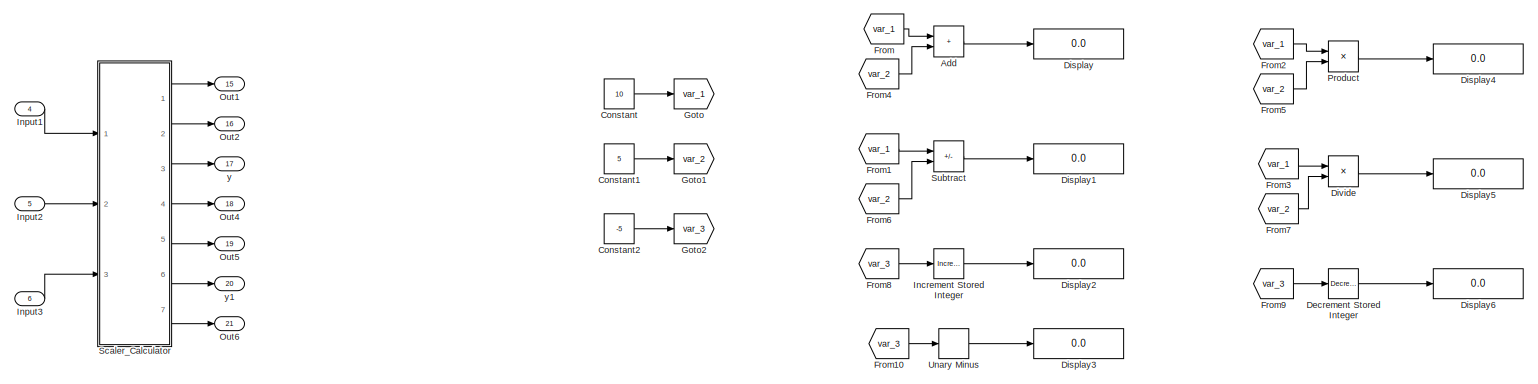
[diagram: root canvas - part 1/3, full width, top band]
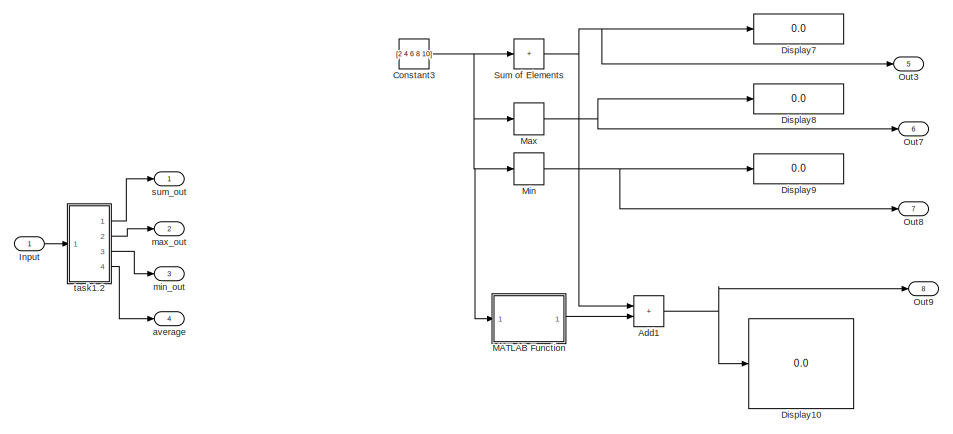
[diagram: root canvas - part 2/3, central region]
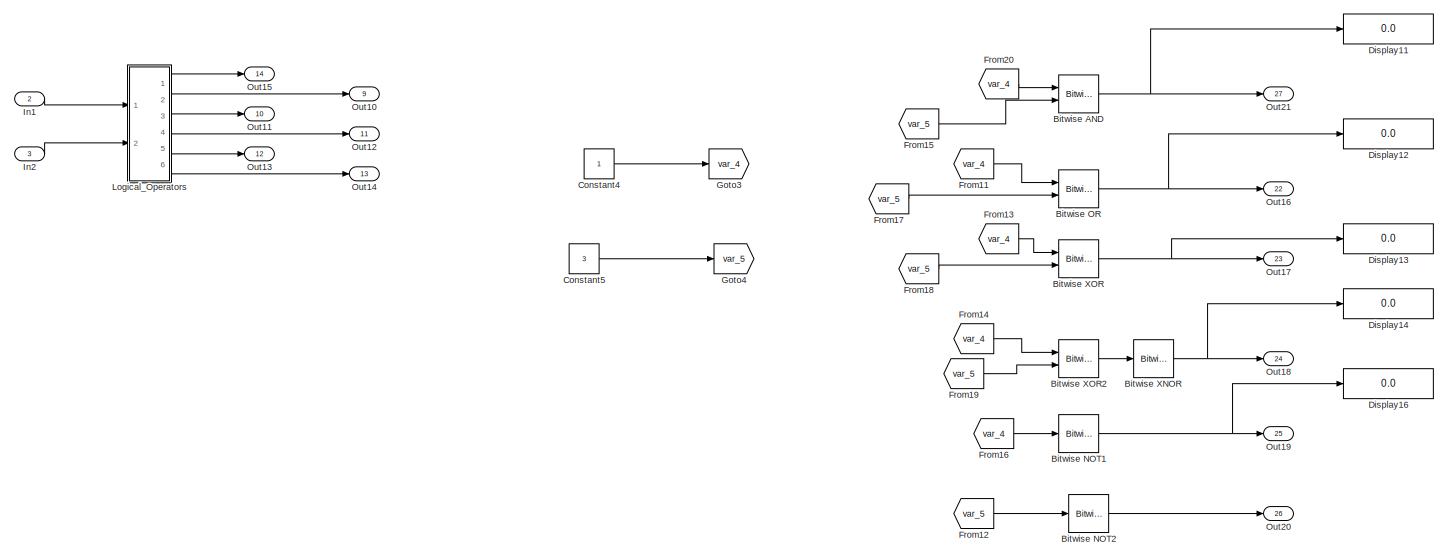
[diagram: root canvas - part 3/3, full width, bottom band]
MODEL slx_2c81993fb657
KIND model
CONFIG AbsTol = auto
CONFIG EnableMultiTasking = off
CONFIG FixedStep = auto
CONFIG MaxStep = auto
CONFIG MinStep = auto
CONFIG RelTol = 1e-3
CONFIG SampleTimeConstraint = Unconstrained
CONFIG SolverName = FixedStepDiscrete
CONFIG StartTime = 0.0
CONFIG StopTime = 10.0
BLOCK [Sum] Add
  IconShape = rectangular
  Ports = [2, 1]
BLOCK [Sum] Add1
  IconShape = rectangular
  Ports = [2, 1]
BLOCK [Reference] Bitwise AND  REF=simulink/Logic and Bit
Operations/Bitwise
Operator
  Ports = [2, 1]
  SourceBlock = simulink/Logic and Bit\nOperations/Bitwise\nOperator
  SourceProductBaseCode = SL
  SourceType = Bitwise Operator
BLOCK [Reference] Bitwise NOT1  REF=simulink/Logic and Bit
Operations/Bitwise
Operator
  Ports = [1, 1]
  SourceBlock = simulink/Logic and Bit\nOperations/Bitwise\nOperator
  SourceProductBaseCode = SL
  SourceType = Bitwise Operator
BLOCK [Reference] Bitwise NOT2  REF=simulink/Logic and Bit
Operations/Bitwise
Operator
  Ports = [1, 1]
  SourceBlock = simulink/Logic and Bit\nOperations/Bitwise\nOperator
  SourceProductBaseCode = SL
  SourceType = Bitwise Operator
BLOCK [Reference] Bitwise OR  REF=simulink/Logic and Bit
Operations/Bitwise
Operator
  Ports = [2, 1]
  SourceBlock = simulink/Logic and Bit\nOperations/Bitwise\nOperator
  SourceProductBaseCode = SL
  SourceType = Bitwise Operator
BLOCK [Reference] Bitwise XNOR  REF=simulink/Logic and Bit
Operations/Bitwise
Operator
  Ports = [1, 1]
  SourceBlock = simulink/Logic and Bit\nOperations/Bitwise\nOperator
  SourceProductBaseCode = SL
  SourceType = Bitwise Operator
BLOCK [Reference] Bitwise XOR  REF=simulink/Logic and Bit
Operations/Bitwise
Operator
  Ports = [2, 1]
  SourceBlock = simulink/Logic and Bit\nOperations/Bitwise\nOperator
  SourceProductBaseCode = SL
  SourceType = Bitwise Operator
BLOCK [Reference] Bitwise XOR2  REF=simulink/Logic and Bit
Operations/Bitwise
Operator
  Ports = [2, 1]
  SourceBlock = simulink/Logic and Bit\nOperations/Bitwise\nOperator
  SourceProductBaseCode = SL
  SourceType = Bitwise Operator
BLOCK [Constant] Constant
  Value = 10
BLOCK [Constant] Constant1
  Value = 5
BLOCK [Constant] Constant2
  Value = -5
BLOCK [Constant] Constant3
  Value = [2 4 6 8 10]
BLOCK [Constant] Constant4
  OutDataTypeStr = uint32
BLOCK [Constant] Constant5
  OutDataTypeStr = uint32
  Value = 3
BLOCK [Reference] Decrement Stored Integer  REF=simulink/Additional Math
& Discrete/Additional Math:
Increment - Decrement/Decrement
Stored Integer
  Ports = [1, 1]
  SourceBlock = simulink/Additional Math\n& Discrete/Additional Math:\nIncrement - Decrement/Decrement\nStored Integer
  SourceProductBaseCode = SL
  SourceType = Stored Integer Value Decrement
BLOCK [Display] Display
  Decimation = 1
  Ports = [1]
BLOCK [Display] Display1
  Decimation = 1
  Ports = [1]
BLOCK [Display] Display10
  Decimation = 1
  Ports = [1]
BLOCK [Display] Display11
  Decimation = 1
  Ports = [1]
BLOCK [Display] Display12
  Decimation = 1
  Ports = [1]
BLOCK [Display] Display13
  Decimation = 1
  Ports = [1]
BLOCK [Display] Display14
  Decimation = 1
  Ports = [1]
BLOCK [Display] Display16
  Decimation = 1
  Ports = [1]
BLOCK [Display] Display2
  Decimation = 1
  Ports = [1]
BLOCK [Display] Display3
  Decimation = 1
  Ports = [1]
BLOCK [Display] Display4
  Decimation = 1
  Ports = [1]
BLOCK [Display] Display5
  Decimation = 1
  Ports = [1]
BLOCK [Display] Display6
  Decimation = 1
  Ports = [1]
BLOCK [Display] Display7
  Decimation = 1
  Ports = [1]
BLOCK [Display] Display8
  Decimation = 1
  Ports = [1]
BLOCK [Display] Display9
  Decimation = 1
  Ports = [1]
BLOCK [Product] Divide
  Inputs = */
  Ports = [2, 1]
BLOCK [From] From
  GotoTag = var_1
BLOCK [From] From1
  GotoTag = var_1
BLOCK [From] From10
  GotoTag = var_3
BLOCK [From] From11
  GotoTag = var_4
BLOCK [From] From12
  GotoTag = var_5
BLOCK [From] From13
  GotoTag = var_4
BLOCK [From] From14
  GotoTag = var_4
BLOCK [From] From15
  GotoTag = var_5
BLOCK [From] From16
  GotoTag = var_4
BLOCK [From] From17
  GotoTag = var_5
BLOCK [From] From18
  GotoTag = var_5
BLOCK [From] From19
  GotoTag = var_5
BLOCK [From] From2
  GotoTag = var_1
BLOCK [From] From20
  GotoTag = var_4
BLOCK [From] From3
  GotoTag = var_1
BLOCK [From] From4
  GotoTag = var_2
BLOCK [From] From5
  GotoTag = var_2
BLOCK [From] From6
  GotoTag = var_2
BLOCK [From] From7
  GotoTag = var_2
BLOCK [From] From8
  GotoTag = var_3
BLOCK [From] From9
  GotoTag = var_3
BLOCK [Goto] Goto
  GotoTag = var_1
BLOCK [Goto] Goto1
  GotoTag = var_2
BLOCK [Goto] Goto2
  GotoTag = var_3
BLOCK [Goto] Goto3
  GotoTag = var_4
BLOCK [Goto] Goto4
  GotoTag = var_5
BLOCK [Inport] In1
  Port = 2
BLOCK [Inport] In2
  Port = 3
BLOCK [Reference] Increment Stored Integer  REF=simulink/Additional Math
& Discrete/Additional Math:
Increment - Decrement/Increment
Stored Integer
  Ports = [1, 1]
  SourceBlock = simulink/Additional Math\n& Discrete/Additional Math:\nIncrement - Decrement/Increment\nStored Integer
  SourceProductBaseCode = SL
  SourceType = Stored Integer Value Increment
BLOCK [Inport] Input
BLOCK [Inport] Input1
  Port = 4
BLOCK [Inport] Input2
  Port = 5
BLOCK [Inport] Input3
  Port = 6
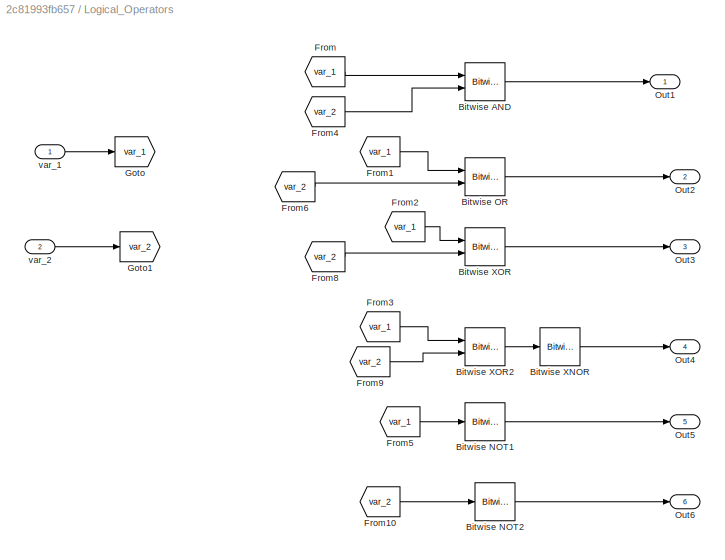
BLOCK [SubSystem] Logical_Operators
  Ports = [2, 6]
  RequestExecContextInheritance = off
BLOCK [Reference] Logical_Operators/Bitwise AND  REF=simulink/Logic and Bit
Operations/Bitwise
Operator
  Ports = [2, 1]
  SourceBlock = simulink/Logic and Bit\nOperations/Bitwise\nOperator
  SourceProductBaseCode = SL
  SourceType = Bitwise Operator
BLOCK [Reference] Logical_Operators/Bitwise NOT1  REF=simulink/Logic and Bit
Operations/Bitwise
Operator
  Ports = [1, 1]
  SourceBlock = simulink/Logic and Bit\nOperations/Bitwise\nOperator
  SourceProductBaseCode = SL
  SourceType = Bitwise Operator
BLOCK [Reference] Logical_Operators/Bitwise NOT2  REF=simulink/Logic and Bit
Operations/Bitwise
Operator
  Ports = [1, 1]
  SourceBlock = simulink/Logic and Bit\nOperations/Bitwise\nOperator
  SourceProductBaseCode = SL
  SourceType = Bitwise Operator
BLOCK [Reference] Logical_Operators/Bitwise OR  REF=simulink/Logic and Bit
Operations/Bitwise
Operator
  Ports = [2, 1]
  SourceBlock = simulink/Logic and Bit\nOperations/Bitwise\nOperator
  SourceProductBaseCode = SL
  SourceType = Bitwise Operator
BLOCK [Reference] Logical_Operators/Bitwise XNOR  REF=simulink/Logic and Bit
Operations/Bitwise
Operator
  Ports = [1, 1]
  SourceBlock = simulink/Logic and Bit\nOperations/Bitwise\nOperator
  SourceProductBaseCode = SL
  SourceType = Bitwise Operator
BLOCK [Reference] Logical_Operators/Bitwise XOR  REF=simulink/Logic and Bit
Operations/Bitwise
Operator
  Ports = [2, 1]
  SourceBlock = simulink/Logic and Bit\nOperations/Bitwise\nOperator
  SourceProductBaseCode = SL
  SourceType = Bitwise Operator
BLOCK [Reference] Logical_Operators/Bitwise XOR2  REF=simulink/Logic and Bit
Operations/Bitwise
Operator
  Ports = [2, 1]
  SourceBlock = simulink/Logic and Bit\nOperations/Bitwise\nOperator
  SourceProductBaseCode = SL
  SourceType = Bitwise Operator
BLOCK [From] Logical_Operators/From
  GotoTag = var_1
BLOCK [From] Logical_Operators/From1
  GotoTag = var_1
BLOCK [From] Logical_Operators/From10
  GotoTag = var_2
BLOCK [From] Logical_Operators/From2
  GotoTag = var_1
BLOCK [From] Logical_Operators/From3
  GotoTag = var_1
BLOCK [From] Logical_Operators/From4
  GotoTag = var_2
BLOCK [From] Logical_Operators/From5
  GotoTag = var_1
BLOCK [From] Logical_Operators/From6
  GotoTag = var_2
BLOCK [From] Logical_Operators/From8
  GotoTag = var_2
BLOCK [From] Logical_Operators/From9
  GotoTag = var_2
BLOCK [Goto] Logical_Operators/Goto
  GotoTag = var_1
BLOCK [Goto] Logical_Operators/Goto1
  GotoTag = var_2
BLOCK [Outport] Logical_Operators/Out1
BLOCK [Outport] Logical_Operators/Out2
  Port = 2
BLOCK [Outport] Logical_Operators/Out3
  Port = 3
BLOCK [Outport] Logical_Operators/Out4
  Port = 4
BLOCK [Outport] Logical_Operators/Out5
  Port = 5
BLOCK [Outport] Logical_Operators/Out6
  Port = 6
BLOCK [Inport] Logical_Operators/var_1
  OutDataTypeStr = uint32
BLOCK [Inport] Logical_Operators/var_2
  OutDataTypeStr = uint32
  Port = 2
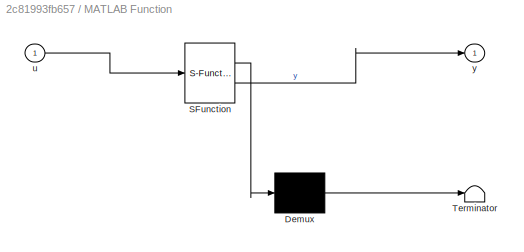
BLOCK [SubSystem] MATLAB Function
  ErrorFcn = Stateflow.Translate.translate
  PermitHierarchicalResolution = ExplicitOnly
  Ports = [1, 1]
  RequestExecContextInheritance = off
  SFBlockType = MATLAB Function
  TreatAsAtomicUnit = on
BLOCK [Demux] MATLAB Function/ Demux 
  Outputs = 1
  Ports = [1, 1]
BLOCK [S-Function] MATLAB Function/ SFunction 
  EnableBusSupport = on
  FunctionName = sf_sfun
  PortCounts = [1 2]
  Ports = [1, 2]
  SFcnIsStateOwnerBlock = off
  SFunctionDeploymentMode = off
  Tag = Stateflow S-Function 1
BLOCK [Terminator] MATLAB Function/ Terminator 
BLOCK [Inport] MATLAB Function/u
BLOCK [Outport] MATLAB Function/y
BLOCK [MinMax] Max
  Function = max
  Ports = [1, 1]
BLOCK [MinMax] Min
  Ports = [1, 1]
BLOCK [Outport] Out1
  Port = 15
BLOCK [Outport] Out10
  Port = 9
BLOCK [Outport] Out11
  Port = 10
BLOCK [Outport] Out12
  Port = 11
BLOCK [Outport] Out13
  Port = 12
BLOCK [Outport] Out14
  Port = 13
BLOCK [Outport] Out15
  Port = 14
BLOCK [Outport] Out16
  Port = 22
BLOCK [Outport] Out17
  Port = 23
BLOCK [Outport] Out18
  Port = 24
BLOCK [Outport] Out19
  Port = 25
BLOCK [Outport] Out2
  Port = 16
BLOCK [Outport] Out20
  Port = 26
BLOCK [Outport] Out21
  Port = 27
BLOCK [Outport] Out3
  Port = 5
BLOCK [Outport] Out4
  Port = 18
BLOCK [Outport] Out5
  Port = 19
BLOCK [Outport] Out6
  Port = 21
BLOCK [Outport] Out7
  Port = 6
BLOCK [Outport] Out8
  Port = 7
BLOCK [Outport] Out9
  Port = 8
BLOCK [Product] Product
  Ports = [2, 1]
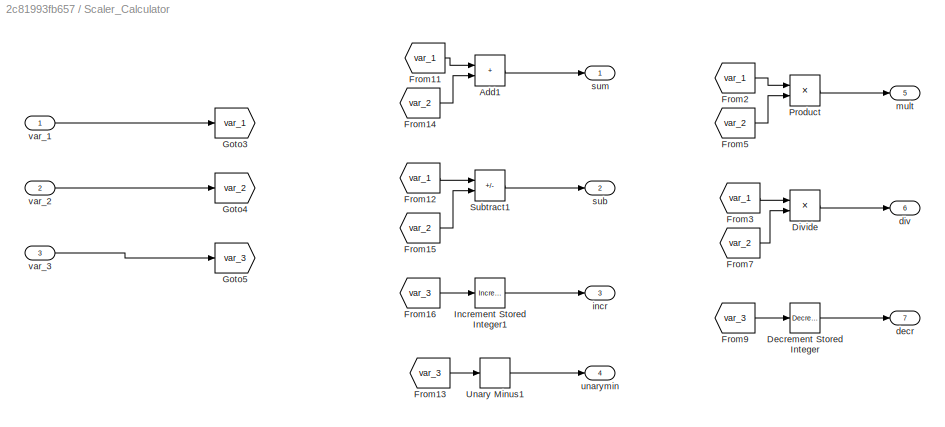
BLOCK [SubSystem] Scaler_Calculator
  Ports = [3, 7]
  RequestExecContextInheritance = off
BLOCK [Sum] Scaler_Calculator/Add1
  IconShape = rectangular
  Ports = [2, 1]
BLOCK [Reference] Scaler_Calculator/Decrement Stored Integer  REF=simulink/Additional Math
& Discrete/Additional Math:
Increment - Decrement/Decrement
Stored Integer
  Ports = [1, 1]
  SourceBlock = simulink/Additional Math\n& Discrete/Additional Math:\nIncrement - Decrement/Decrement\nStored Integer
  SourceProductBaseCode = SL
  SourceType = Stored Integer Value Decrement
BLOCK [Product] Scaler_Calculator/Divide
  Inputs = */
  Ports = [2, 1]
BLOCK [From] Scaler_Calculator/From11
  GotoTag = var_1
BLOCK [From] Scaler_Calculator/From12
  GotoTag = var_1
BLOCK [From] Scaler_Calculator/From13
  GotoTag = var_3
BLOCK [From] Scaler_Calculator/From14
  GotoTag = var_2
BLOCK [From] Scaler_Calculator/From15
  GotoTag = var_2
BLOCK [From] Scaler_Calculator/From16
  GotoTag = var_3
BLOCK [From] Scaler_Calculator/From2
  GotoTag = var_1
BLOCK [From] Scaler_Calculator/From3
  GotoTag = var_1
BLOCK [From] Scaler_Calculator/From5
  GotoTag = var_2
BLOCK [From] Scaler_Calculator/From7
  GotoTag = var_2
BLOCK [From] Scaler_Calculator/From9
  GotoTag = var_3
BLOCK [Goto] Scaler_Calculator/Goto3
  GotoTag = var_1
BLOCK [Goto] Scaler_Calculator/Goto4
  GotoTag = var_2
BLOCK [Goto] Scaler_Calculator/Goto5
  GotoTag = var_3
BLOCK [Reference] Scaler_Calculator/Increment Stored Integer1  REF=simulink/Additional Math
& Discrete/Additional Math:
Increment - Decrement/Increment
Stored Integer
  Ports = [1, 1]
  SourceBlock = simulink/Additional Math\n& Discrete/Additional Math:\nIncrement - Decrement/Increment\nStored Integer
  SourceProductBaseCode = SL
  SourceType = Stored Integer Value Increment
BLOCK [Product] Scaler_Calculator/Product
  Ports = [2, 1]
BLOCK [Sum] Scaler_Calculator/Subtract1
  IconShape = rectangular
  Inputs = +-
  Ports = [2, 1]
BLOCK [UnaryMinus] Scaler_Calculator/Unary Minus1
BLOCK [Outport] Scaler_Calculator/decr
  Port = 7
BLOCK [Outport] Scaler_Calculator/div
  Port = 6
BLOCK [Outport] Scaler_Calculator/incr
  Port = 3
BLOCK [Outport] Scaler_Calculator/mult
  Port = 5
BLOCK [Outport] Scaler_Calculator/sub
  Port = 2
BLOCK [Outport] Scaler_Calculator/sum
BLOCK [Outport] Scaler_Calculator/unarymin
  Port = 4
BLOCK [Inport] Scaler_Calculator/var_1
BLOCK [Inport] Scaler_Calculator/var_2
  Port = 2
BLOCK [Inport] Scaler_Calculator/var_3
  Port = 3
BLOCK [Sum] Subtract
  IconShape = rectangular
  Inputs = +-
  Ports = [2, 1]
BLOCK [Sum] Sum of Elements
  IconShape = rectangular
  Inputs = +
  Ports = [1, 1]
BLOCK [UnaryMinus] Unary Minus
BLOCK [Outport] average
  Port = 4
BLOCK [Outport] max_out
  Port = 2
BLOCK [Outport] min_out
  Port = 3
BLOCK [Outport] sum_out
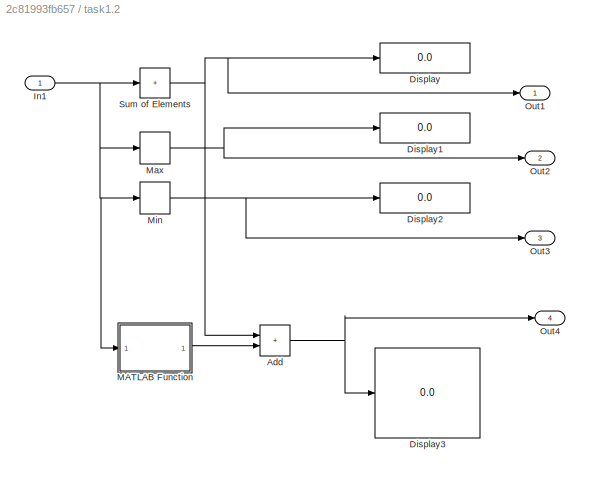
BLOCK [SubSystem] task1.2
  Ports = [1, 4]
  RequestExecContextInheritance = off
BLOCK [Sum] task1.2/Add
  IconShape = rectangular
  Ports = [2, 1]
BLOCK [Display] task1.2/Display
  Decimation = 1
  Ports = [1]
BLOCK [Display] task1.2/Display1
  Decimation = 1
  Ports = [1]
BLOCK [Display] task1.2/Display2
  Decimation = 1
  Ports = [1]
BLOCK [Display] task1.2/Display3
  Decimation = 1
  Ports = [1]
BLOCK [Inport] task1.2/In1
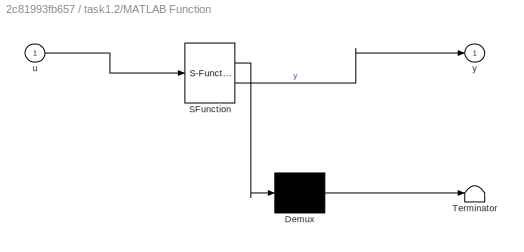
BLOCK [SubSystem] task1.2/MATLAB Function
  ErrorFcn = Stateflow.Translate.translate
  PermitHierarchicalResolution = ExplicitOnly
  Ports = [1, 1]
  RequestExecContextInheritance = off
  SFBlockType = MATLAB Function
  TreatAsAtomicUnit = on
BLOCK [Demux] task1.2/MATLAB Function/ Demux 
  Outputs = 1
  Ports = [1, 1]
BLOCK [S-Function] task1.2/MATLAB Function/ SFunction 
  EnableBusSupport = on
  FunctionName = sf_sfun
  PortCounts = [1 2]
  Ports = [1, 2]
  SFcnIsStateOwnerBlock = off
  SFunctionDeploymentMode = off
  Tag = Stateflow S-Function 2
BLOCK [Terminator] task1.2/MATLAB Function/ Terminator 
BLOCK [Inport] task1.2/MATLAB Function/u
BLOCK [Outport] task1.2/MATLAB Function/y
BLOCK [MinMax] task1.2/Max
  Function = max
  Ports = [1, 1]
BLOCK [MinMax] task1.2/Min
  Ports = [1, 1]
BLOCK [Outport] task1.2/Out1
BLOCK [Outport] task1.2/Out2
  Port = 2
BLOCK [Outport] task1.2/Out3
  Port = 3
BLOCK [Outport] task1.2/Out4
  Port = 4
BLOCK [Sum] task1.2/Sum of Elements
  IconShape = rectangular
  Inputs = +
  Ports = [1, 1]
BLOCK [Outport] y
  Port = 17
BLOCK [Outport] y1
  Port = 20
NET Add1:1 -> Display10:1, Out9:1
LINE Add:1 -> Display:1
NET Bitwise AND:1 -> Display11:1, Out21:1
NET Bitwise NOT1:1 -> Display16:1, Out19:1
LINE Bitwise NOT2:1 -> Out20:1
NET Bitwise OR:1 -> Display12:1, Out16:1
NET Bitwise XNOR:1 -> Display14:1, Out18:1
LINE Bitwise XOR2:1 -> Bitwise XNOR:1
NET Bitwise XOR:1 -> Display13:1, Out17:1
LINE Constant1:1 -> Goto1:1
LINE Constant2:1 -> Goto2:1
NET Constant3:1 -> MATLAB Function:1, Max:1, Min:1, Sum of Elements:1
LINE Constant4:1 -> Goto3:1
LINE Constant5:1 -> Goto4:1
LINE Constant:1 -> Goto:1
LINE Decrement Stored Integer:1 -> Display6:1
LINE Divide:1 -> Display5:1
LINE From10:1 -> Unary Minus:1
LINE From11:1 -> Bitwise OR:1
LINE From12:1 -> Bitwise NOT2:1
LINE From13:1 -> Bitwise XOR:1
LINE From14:1 -> Bitwise XOR2:1
LINE From15:1 -> Bitwise AND:2
LINE From16:1 -> Bitwise NOT1:1
LINE From17:1 -> Bitwise OR:2
LINE From18:1 -> Bitwise XOR:2
LINE From19:1 -> Bitwise XOR2:2
LINE From1:1 -> Subtract:1
LINE From20:1 -> Bitwise AND:1
LINE From2:1 -> Product:1
LINE From3:1 -> Divide:1
LINE From4:1 -> Add:2
LINE From5:1 -> Product:2
LINE From6:1 -> Subtract:2
LINE From7:1 -> Divide:2
LINE From8:1 -> Increment Stored Integer:1
LINE From9:1 -> Decrement Stored Integer:1
LINE From:1 -> Add:1
LINE In1:1 -> Logical_Operators:1
LINE In2:1 -> Logical_Operators:2
LINE Increment Stored Integer:1 -> Display2:1
LINE Input1:1 -> Scaler_Calculator:1
LINE Input2:1 -> Scaler_Calculator:2
LINE Input3:1 -> Scaler_Calculator:3
LINE Input:1 -> task1.2:1
LINE Logical_Operators/Bitwise AND:1 -> Logical_Operators/Out1:1
LINE Logical_Operators/Bitwise NOT1:1 -> Logical_Operators/Out5:1
LINE Logical_Operators/Bitwise NOT2:1 -> Logical_Operators/Out6:1
LINE Logical_Operators/Bitwise OR:1 -> Logical_Operators/Out2:1
LINE Logical_Operators/Bitwise XNOR:1 -> Logical_Operators/Out4:1
LINE Logical_Operators/Bitwise XOR2:1 -> Logical_Operators/Bitwise XNOR:1
LINE Logical_Operators/Bitwise XOR:1 -> Logical_Operators/Out3:1
LINE Logical_Operators/From10:1 -> Logical_Operators/Bitwise NOT2:1
LINE Logical_Operators/From1:1 -> Logical_Operators/Bitwise OR:1
LINE Logical_Operators/From2:1 -> Logical_Operators/Bitwise XOR:1
LINE Logical_Operators/From3:1 -> Logical_Operators/Bitwise XOR2:1
LINE Logical_Operators/From4:1 -> Logical_Operators/Bitwise AND:2
LINE Logical_Operators/From5:1 -> Logical_Operators/Bitwise NOT1:1
LINE Logical_Operators/From6:1 -> Logical_Operators/Bitwise OR:2
LINE Logical_Operators/From8:1 -> Logical_Operators/Bitwise XOR:2
LINE Logical_Operators/From9:1 -> Logical_Operators/Bitwise XOR2:2
LINE Logical_Operators/From:1 -> Logical_Operators/Bitwise AND:1
LINE Logical_Operators/var_1:1 -> Logical_Operators/Goto:1
LINE Logical_Operators/var_2:1 -> Logical_Operators/Goto1:1
LINE Logical_Operators:1 -> Out15:1
LINE Logical_Operators:2 -> Out10:1
LINE Logical_Operators:3 -> Out11:1
LINE Logical_Operators:4 -> Out12:1
LINE Logical_Operators:5 -> Out13:1
LINE Logical_Operators:6 -> Out14:1
LINE MATLAB Function:1 -> Add1:2
NET Max:1 -> Display8:1, Out7:1
NET Min:1 -> Display9:1, Out8:1
LINE Product:1 -> Display4:1
LINE Scaler_Calculator/Add1:1 -> Scaler_Calculator/sum:1
LINE Scaler_Calculator/Decrement Stored Integer:1 -> Scaler_Calculator/decr:1
LINE Scaler_Calculator/Divide:1 -> Scaler_Calculator/div:1
LINE Scaler_Calculator/From11:1 -> Scaler_Calculator/Add1:1
LINE Scaler_Calculator/From12:1 -> Scaler_Calculator/Subtract1:1
LINE Scaler_Calculator/From13:1 -> Scaler_Calculator/Unary Minus1:1
LINE Scaler_Calculator/From14:1 -> Scaler_Calculator/Add1:2
LINE Scaler_Calculator/From15:1 -> Scaler_Calculator/Subtract1:2
LINE Scaler_Calculator/From16:1 -> Scaler_Calculator/Increment Stored Integer1:1
LINE Scaler_Calculator/From2:1 -> Scaler_Calculator/Product:1
LINE Scaler_Calculator/From3:1 -> Scaler_Calculator/Divide:1
LINE Scaler_Calculator/From5:1 -> Scaler_Calculator/Product:2
LINE Scaler_Calculator/From7:1 -> Scaler_Calculator/Divide:2
LINE Scaler_Calculator/From9:1 -> Scaler_Calculator/Decrement Stored Integer:1
LINE Scaler_Calculator/Increment Stored Integer1:1 -> Scaler_Calculator/incr:1
LINE Scaler_Calculator/Product:1 -> Scaler_Calculator/mult:1
LINE Scaler_Calculator/Subtract1:1 -> Scaler_Calculator/sub:1
LINE Scaler_Calculator/Unary Minus1:1 -> Scaler_Calculator/unarymin:1
LINE Scaler_Calculator/var_1:1 -> Scaler_Calculator/Goto3:1
LINE Scaler_Calculator/var_2:1 -> Scaler_Calculator/Goto4:1
LINE Scaler_Calculator/var_3:1 -> Scaler_Calculator/Goto5:1
LINE Scaler_Calculator:1 -> Out1:1
LINE Scaler_Calculator:2 -> Out2:1
LINE Scaler_Calculator:3 -> y:1
LINE Scaler_Calculator:4 -> Out4:1
LINE Scaler_Calculator:5 -> Out5:1
LINE Scaler_Calculator:6 -> y1:1
LINE Scaler_Calculator:7 -> Out6:1
LINE Subtract:1 -> Display1:1
NET Sum of Elements:1 -> Add1:1, Display7:1, Out3:1
LINE Unary Minus:1 -> Display3:1
NET task1.2/Add:1 -> task1.2/Display3:1, task1.2/Out4:1
NET task1.2/In1:1 -> task1.2/MATLAB Function:1, task1.2/Max:1, task1.2/Min:1, task1.2/Sum of Elements:1
LINE task1.2/MATLAB Function:1 -> task1.2/Add:2
NET task1.2/Max:1 -> task1.2/Display1:1, task1.2/Out2:1
NET task1.2/Min:1 -> task1.2/Display2:1, task1.2/Out3:1
NET task1.2/Sum of Elements:1 -> task1.2/Add:1, task1.2/Display:1, task1.2/Out1:1
LINE task1.2:1 -> sum_out:1
LINE task1.2:2 -> max_out:1
LINE task1.2:3 -> min_out:1
LINE task1.2:4 -> average:1
note: NET lines group one-source signal fan-out (src -> all destinations, sorted); 1:1 wires keep LINE
CHART task1.2/MATLAB Function states=1 transitions=1
  STATE_LABEL 'eML_blk_kernel()'
  STATE_LABEL 'SCRIPT:\nfunction y = fcn(u)\n\ny = u;\n'
CHART MATLAB Function states=1 transitions=1
  STATE_LABEL 'eML_blk_kernel()'
  STATE_LABEL 'SCRIPT:\nfunction y = fcn(u)\n\ny = u;\n'
CHART  states=0 transitions=0
CHART  states=0 transitions=0
